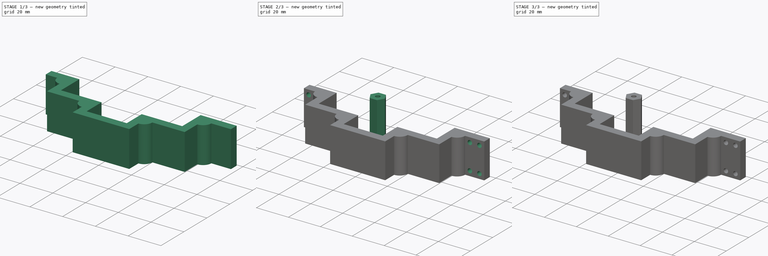
[diagram: build sequence overview — one tinted view per stage of 3, left to right]
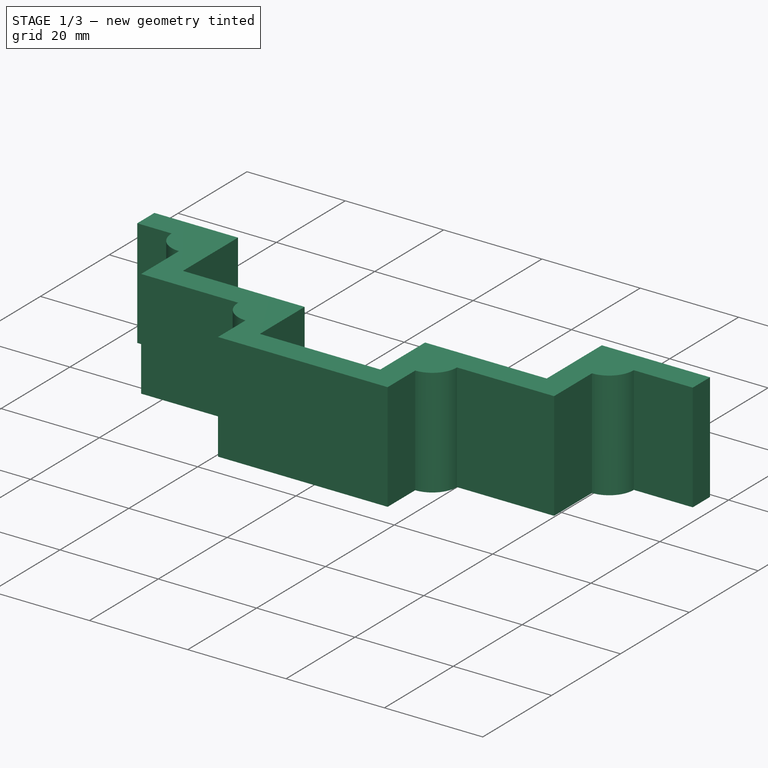
[diagram: stage 1 of 3 — iso view after this stage's code; geometry added in this stage tinted green]
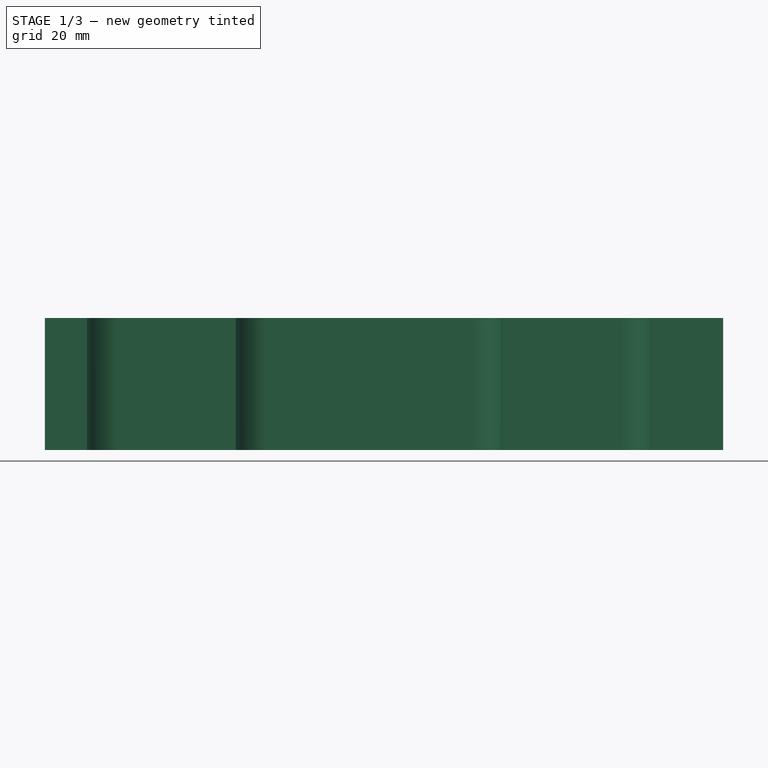
[diagram: stage 1 of 3 — front view after this stage's code; geometry added in this stage tinted green]
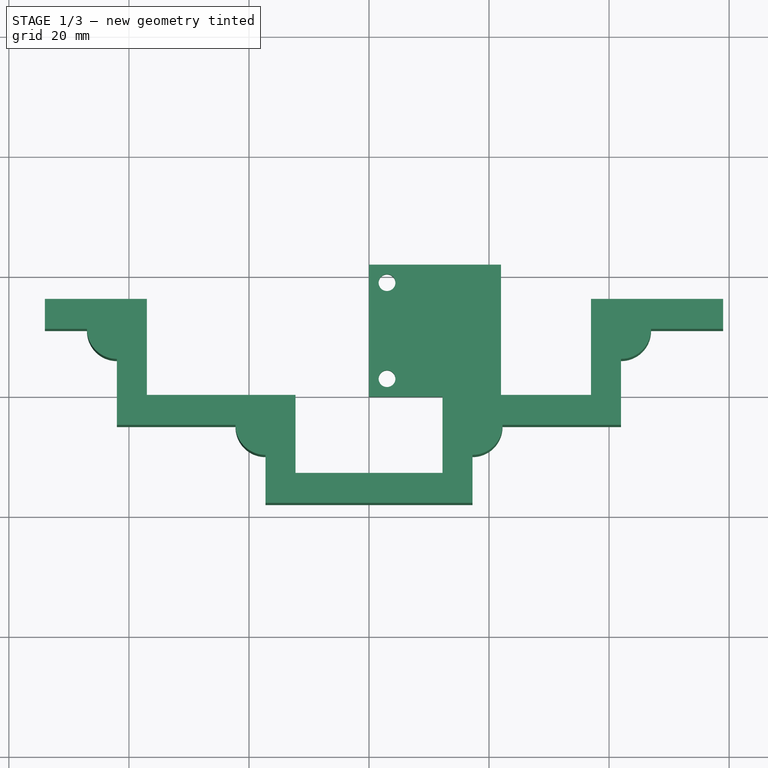
[diagram: stage 1 of 3 — top view after this stage's code; geometry added in this stage tinted green]
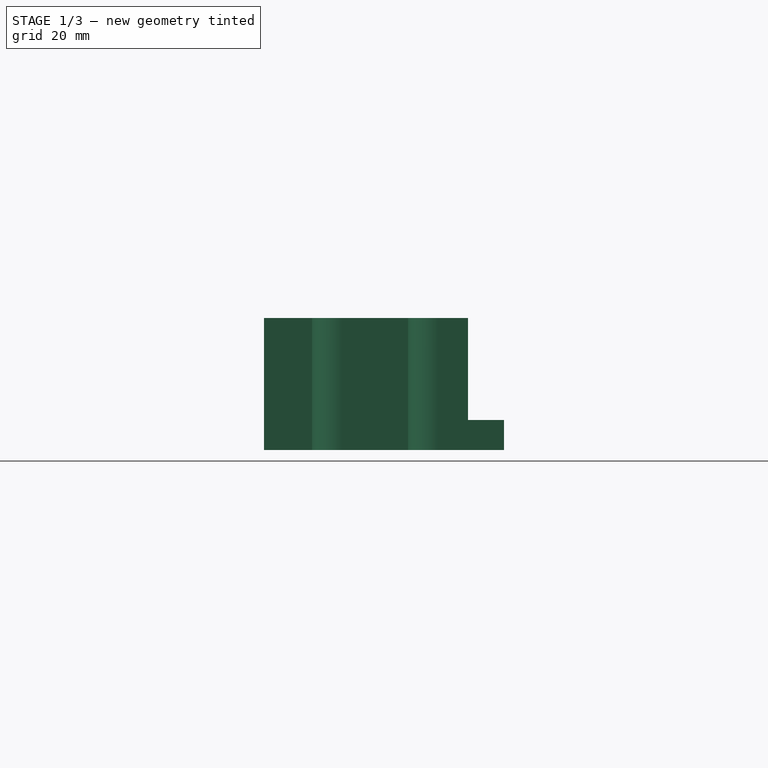
[diagram: stage 1 of 3 — right view after this stage's code; geometry added in this stage tinted green]
FCSTD DOCUMENT  (FreeCAD 0.20R29177 +426 (Git))
Label: OutputShaftConnectors
License: All rights reserved
LicenseURL: http://en.wikipedia.org/wiki/All_rights_reserved
objects: Sketcher::SketchObject×7, PartDesign::Pad×4, PartDesign::Body×3, Spreadsheet::Sheet×2, PartDesign::Pocket×2, PartDesign::Revolution×1
note: 24 computed .brp shape members not serialized (recipe doc carries the construction recipe); baked Part::Feature solids carry a one-line shape summary decoded from their .brp

FEATURE [PartDesign::Body] Body
  Group = -> [Sketch,Pad,Sketch001,Pad001,Sketch002,Pocket,Sketch003,Revolution]
  Origin = -> Origin
  Tip = -> Revolution
FEATURE [Spreadsheet::Sheet] Spreadsheet001  label="Spreadsheet001UnderCarSupport1"
  cells = A2=totalWidthInner; B2(totalWidthInner)==75 - 1; A3=underBumpWidth; B3(underBumpWidth)==25 - 0.5; A4=wallThickness; B4(wallThickness)=5; A5=bumpHeight; B5(bumpHeight)==12.5 + 0.5; A6=sideHeight; B6(sideHeight)==15 + 1; A7=halfTotalWidthInner; B7(halfTotalWidthInner)==B2 / 2; C7=totalWidthInner/2; A8=halfUnderBumpWidth; B8(halfUnderBumpWidth)==B3 / 2; A10=frontExtra; B10(frontExtra)==B4 * 2 + 12; A11=rareExtra; B11(rareExtra)==B4 * 2 + 7; A12=underArmLen; B12(underArmLen)==B7 - B8; A14=LowerBumpOutsideLen; B14(LowerBumpOutsideLen)==B8 + B4; C14=halfUnderBumpWidth + wallThickness; A15=LowerOutsideLen; B15(LowerOutsideLen)==B7 + B4; C15=lower outside + wallThickness; A17=tightScrewR; B17(tightScrewR)=1.4; A18=screwToSide; B18(screwToSide)=3; A19=unitThickness; B19(unitThickness)=22; A21=frontScrewPos; B21(frontScrewPos)==B7 + B10 - B18; A22=rearScrewPos; B22(rearScrewPos)==B7 + B11 - B18
FEATURE [Sketcher::SketchObject] Sketch004
  FullyConstrained = true
  MapMode = 5
  Support = -> [XY_Plane002]
  expr: Constraints[20] = Spreadsheet001.sideHeight
  expr: Constraints[21] = Spreadsheet001.sideHeight
  expr: Constraints[26] = Spreadsheet001.frontExtra
  expr: Constraints[27] = Spreadsheet001.rareExtra
  expr: Constraints[28] = Spreadsheet001.sideHeight + Spreadsheet001.wallThickness
  expr: Constraints[2] = Spreadsheet001.halfTotalWidthInner
  expr: Constraints[33] = Spreadsheet001.bumpHeight
  expr: Constraints[36] = Spreadsheet001.LowerBumpOutsideLen
  expr: Constraints[39] = Spreadsheet001.wallThickness
  expr: Constraints[3] = Spreadsheet001.halfTotalWidthInner
  expr: Constraints[40] = Spreadsheet001.halfUnderBumpWidth + Spreadsheet001.wallThickness
  expr: Constraints[42] = Spreadsheet001.bumpHeight + Spreadsheet001.wallThickness
  expr: Constraints[45] = Spreadsheet001.wallThickness
  expr: Constraints[48] = Spreadsheet001.LowerBumpOutsideLen
  expr: Constraints[49] = Spreadsheet001.LowerOutsideLen
  expr: Constraints[56] = Spreadsheet001.wallThickness
  expr: Constraints[57] = Spreadsheet001.LowerOutsideLen
  expr: Constraints[5] = Spreadsheet001.halfUnderBumpWidth
  expr: Constraints[64] = Spreadsheet001.wallThickness
  expr: Constraints[67] = Spreadsheet001.wallThickness
  expr: Constraints[68] = Spreadsheet001.wallThickness
  expr: Constraints[69] = Spreadsheet001.wallThickness
  expr: Constraints[6] = Spreadsheet001.halfUnderBumpWidth
  expr: Constraints[72] = Spreadsheet001.wallThickness
  expr: Constraints[73] = Spreadsheet001.wallThickness
  expr: Constraints[74] = Spreadsheet001.wallThickness
  expr: Constraints[75] = Spreadsheet001.wallThickness
  expr: Constraints[7] = Spreadsheet001.bumpHeight
  sketch-geometry (24):
    g0: LineSegment StartX=-37 StartY=0 StartZ=0 EndX=-12.25 EndY=0 EndZ=0
    g1: LineSegment StartX=-12.25 StartY=-13 StartZ=0 EndX=12.25 EndY=-13 EndZ=0
    g2: LineSegment StartX=12.25 StartY=-13 StartZ=0 EndX=12.25 EndY=0 EndZ=0
    g3: LineSegment StartX=-12.25 StartY=-13 StartZ=0 EndX=-12.25 EndY=0 EndZ=0
    g4: LineSegment StartX=12.25 StartY=0 StartZ=0 EndX=37 EndY=0 EndZ=0
    g5: LineSegment StartX=-37 StartY=0 StartZ=0 EndX=-37 EndY=16 EndZ=0
    g6: LineSegment StartX=37 StartY=0 StartZ=0 EndX=37 EndY=16 EndZ=0
    g7: LineSegment StartX=37 StartY=16 StartZ=0 EndX=59 EndY=16 EndZ=0
    g8: LineSegment StartX=-37 StartY=16 StartZ=0 EndX=-54 EndY=16 EndZ=0
    g9: LineSegment StartX=-42 StartY=-5 StartZ=0 EndX=-22.25 EndY=-5 EndZ=0
    g10: LineSegment StartX=42 StartY=-5 StartZ=0 EndX=22.25 EndY=-5 EndZ=0
    g11: LineSegment StartX=-17.25 StartY=-10 StartZ=0 EndX=-17.25 EndY=-18 EndZ=0
    g12: LineSegment StartX=17.25 StartY=-10 StartZ=0 EndX=17.25 EndY=-18 EndZ=0
    g13: LineSegment StartX=-17.25 StartY=-18 StartZ=0 EndX=17.25 EndY=-18 EndZ=0
    g14: ArcOfCircle CenterX=17.25 CenterY=-5 CenterZ=0 NormalX=0 NormalY=0 NormalZ=1 AngleXU=0 Radius=5 StartAngle=4.71239 EndAngle=6.28319
    g15: ArcOfCircle CenterX=-17.25 CenterY=-5 CenterZ=0 NormalX=0 NormalY=0 NormalZ=1 AngleXU=0 Radius=5 StartAngle=3.14159 EndAngle=4.71239
    g16: LineSegment StartX=-42 StartY=-5 StartZ=0 EndX=-42 EndY=6 EndZ=0
    g17: LineSegment StartX=-47 StartY=11 StartZ=0 EndX=-54 EndY=11 EndZ=0
    g18: LineSegment StartX=-54 StartY=16 StartZ=0 EndX=-54 EndY=11 EndZ=0
    g19: LineSegment StartX=42 StartY=-5 StartZ=0 EndX=42 EndY=6 EndZ=0
    g20: LineSegment StartX=47 StartY=11 StartZ=0 EndX=59 EndY=11 EndZ=0
    g21: LineSegment StartX=59 StartY=16 StartZ=0 EndX=59 EndY=11 EndZ=0
    g22: ArcOfCircle CenterX=42 CenterY=11 CenterZ=0 NormalX=0 NormalY=0 NormalZ=1 AngleXU=0 Radius=5 StartAngle=4.71239 EndAngle=6.28319
    g23: ArcOfCircle CenterX=-42 CenterY=11 CenterZ=0 NormalX=0 NormalY=0 NormalZ=1 AngleXU=0 Radius=5 StartAngle=3.14159 EndAngle=4.71239
  constraints (76):
    c: PointOnObject(g0,g-1)
    c: PointOnObject(g4,g-1)
    c: DistanceX(g-1,g4) = 37
    c: DistanceX(g0,g-1) = 37
    c: Horizontal(g1)
    c: DistanceX(g-1,g1) = 12.25
    c: DistanceX(g1,g-1) = 12.25
    c: DistanceY(g1,g-1) = 13
    c: Coincident(g2,g1)
    c: Vertical(g2)
    c: Coincident(g3,g1)
    c: Vertical(g3)
    c: Coincident(g0,g3)
    c: Coincident(g4,g2)
    c: Horizontal(g4)
    c: Horizontal(g0)
    c: Coincident(g5,g0)
    c: Vertical(g5)
    c: Coincident(g6,g4)
    c: Vertical(g6)
    c: DistanceY(g6,g6) = 16
    c: DistanceY(g5,g5) = 16
    c: Coincident(g7,g6)
    c: Horizontal(g7)
    c: Coincident(g8,g5)
    c: Horizontal(g8)
    c: DistanceX(g7,g7) = 22
    c: DistanceX(g8,g8) = 17
    c: DistanceY(g9,g8) = 21
    c: Horizontal(g9)
    c: Horizontal(g10)
    c: Vertical(g11)
    c: Vertical(g12)
    c: DistanceY(g11,g15) = 13
    c: Coincident(g13,g11)
    c: Coincident(g13,g12)
    c: DistanceX(g-1,g12) = 17.25
    c: Coincident(g9,g15)
    c: Coincident(g11,g15)
    c: Radius(g15) = 5
    c: DistanceX(g11,g-1) = 17.25
    c: Horizontal(g13)
    c: DistanceY(g11,g-1) = 18
    c: Coincident(g12,g14)
    c: Coincident(g10,g14)
    c: Radius(g14) = 5
    c: PointOnObject(g14,g10)
    c: PointOnObject(g14,g12)
    c: DistanceX(g15,g-1) = 17.25
    c: DistanceX(g9,g-1) = 42
    c: Coincident(g16,g9)
    c: Vertical(g16)
    c: Horizontal(g17)
    c: Coincident(g18,g8)
    c: Vertical(g18)
    c: Coincident(g18,g17)
    c: DistanceY(g14,g2) = 5
    c: DistanceX(g-1,g10) = 42
    c: Coincident(g19,g10)
    c: Vertical(g19)
    c: Horizontal(g20)
    c: Coincident(g21,g7)
    c: Vertical(g21)
    c: Coincident(g20,g21)
    c: Radius(g22) = 5
    c: Coincident(g20,g22)
    c: Coincident(g19,g22)
    c: DistanceY(g22,g6) = 5
    c: DistanceX(g6,g22) = 5
    c: DistanceY(g20,g6) = 5
    c: Coincident(g17,g23)
    c: Coincident(g16,g23)
    c: DistanceY(g23,g5) = 5
    c: DistanceX(g23,g5) = 5
    c: Radius(g23) = 5
    c: DistanceY(g17,g5) = 5
FEATURE [PartDesign::Pad] Pad002
  Direction = (0,0,1)
  Length = 22
  Length2 = 10
  Profile = -> Sketch004
  ReferenceAxis = -> Sketch004 [N_Axis]
  Type = 0
  expr: Length = Spreadsheet001.unitThickness
FEATURE [PartDesign::Body] Body002
  Group = -> [Sketch004,Pad002,Sketch005,Pocket001]
  Origin = -> Origin002
  Tip = -> Pocket001
FEATURE [Sketcher::SketchObject] Sketch006
  FullyConstrained = true
  MapMode = 5
  Support = -> [XY_Plane001]
  expr: Constraints[10] = Spreadsheet001.unitThickness
  expr: Constraints[12] = Spreadsheet001.screwToSide
  expr: Constraints[13] = Spreadsheet001.screwToSide
  expr: Constraints[14] = Spreadsheet001.screwToSide
  expr: Constraints[18] = Spreadsheet001.tightScrewR
  expr: Constraints[9] = Spreadsheet001.unitThickness
  sketch-geometry (7):
    g0: LineSegment StartX=0 StartY=0 StartZ=0 EndX=22 EndY=0 EndZ=0
    g1: LineSegment StartX=22 StartY=0 StartZ=0 EndX=22 EndY=22 EndZ=0
    g2: LineSegment StartX=22 StartY=22 StartZ=0 EndX=0 EndY=22 EndZ=0
    g3: LineSegment StartX=0 StartY=22 StartZ=0 EndX=0 EndY=0 EndZ=0
    g4: LineSegment StartX=3 StartY=19 StartZ=0 EndX=3 EndY=3 EndZ=0
    g5: Circle CenterX=3 CenterY=19 CenterZ=0 NormalX=0 NormalY=0 NormalZ=1 AngleXU=0 Radius=1.4
    g6: Circle CenterX=3 CenterY=3 CenterZ=0 NormalX=0 NormalY=0 NormalZ=1 AngleXU=0 Radius=1.4
  constraints (19):
    c: Coincident(g0,g1)
    c: Coincident(g1,g2)
    c: Coincident(g2,g3)
    c: Coincident(g3,g0)
    c: Horizontal(g0)
    c: Horizontal(g2)
    c: Vertical(g1)
    c: Vertical(g3)
    c: Coincident(g0,g-1)
    c: DistanceX(g2,g2) = 22
    c: DistanceY(g1,g1) = 22
    c: Vertical(g4)
    c: DistanceY(g0,g4) = 3
    c: DistanceY(g4,g2) = 3
    c: DistanceX(g0,g4) = 3
    c: Coincident(g5,g4)
    c: Coincident(g6,g4)
    c: Equal(g5,g6)
    c: Radius(g5) = 1.4
FEATURE [PartDesign::Pad] Pad003
  Direction = (0,0,1)
  Length = 5
  Length2 = 10
  Profile = -> Sketch006
  ReferenceAxis = -> Sketch006 [N_Axis]
  Type = 0
  expr: Length = Spreadsheet001.wallThickness
FEATURE [PartDesign::Body] Body001  label="Body001RearSecure"
  Group = -> [Sketch006,Pad003]
  Origin = -> Origin001
  Tip = -> Pad003
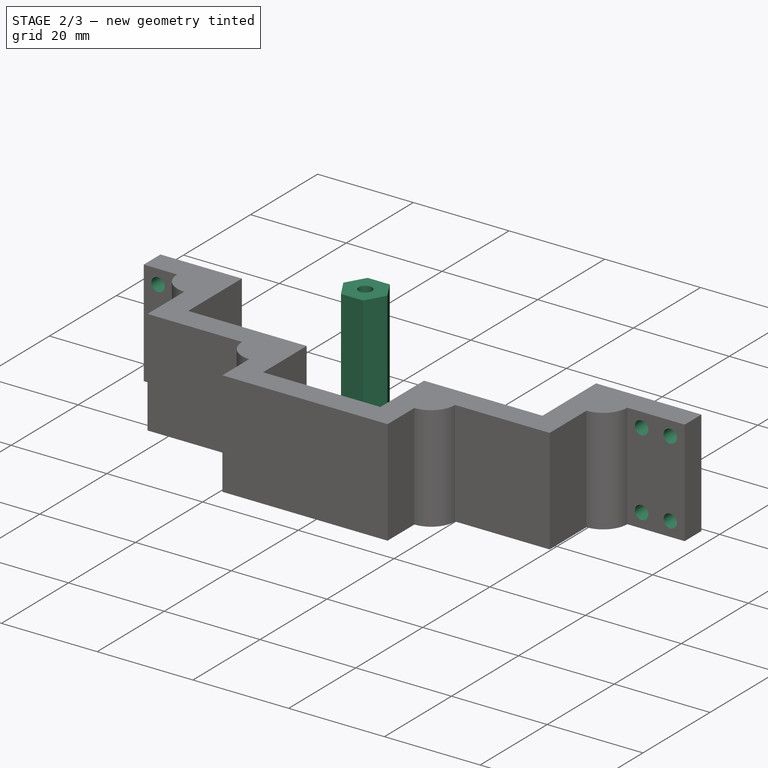
[diagram: stage 2 of 3 — iso view after this stage's code; geometry added in this stage tinted green]
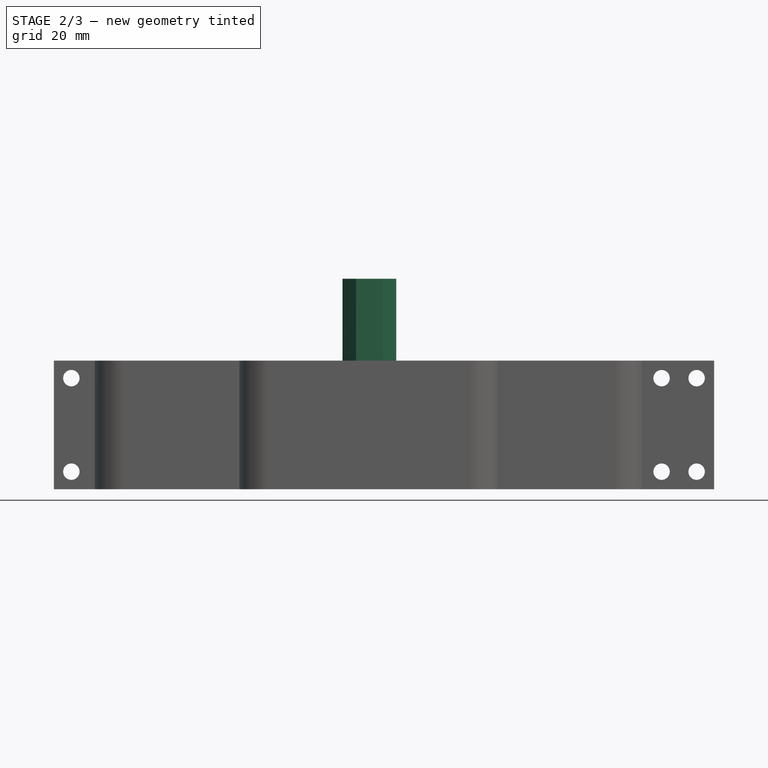
[diagram: stage 2 of 3 — front view after this stage's code; geometry added in this stage tinted green]
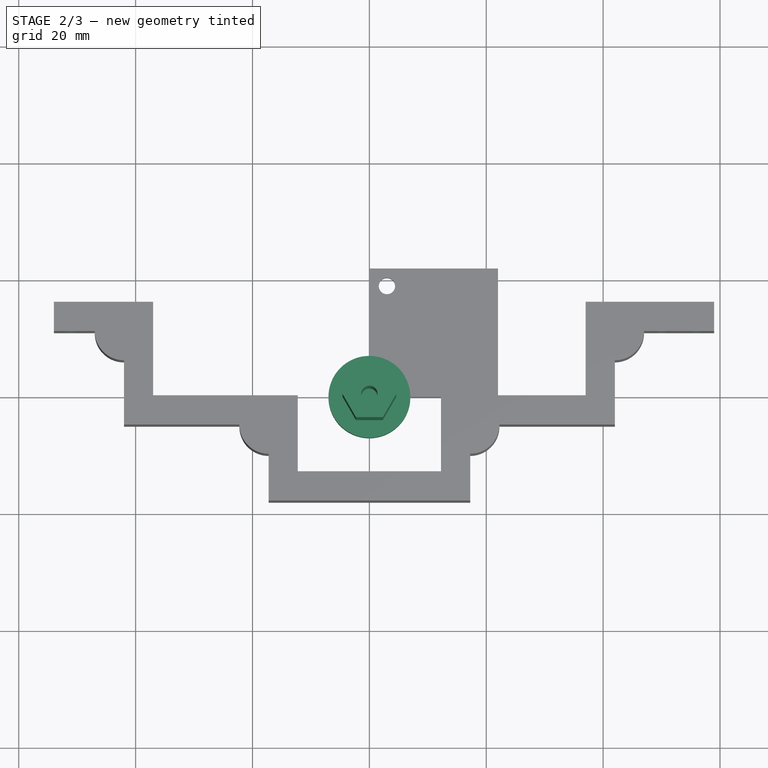
[diagram: stage 2 of 3 — top view after this stage's code; geometry added in this stage tinted green]
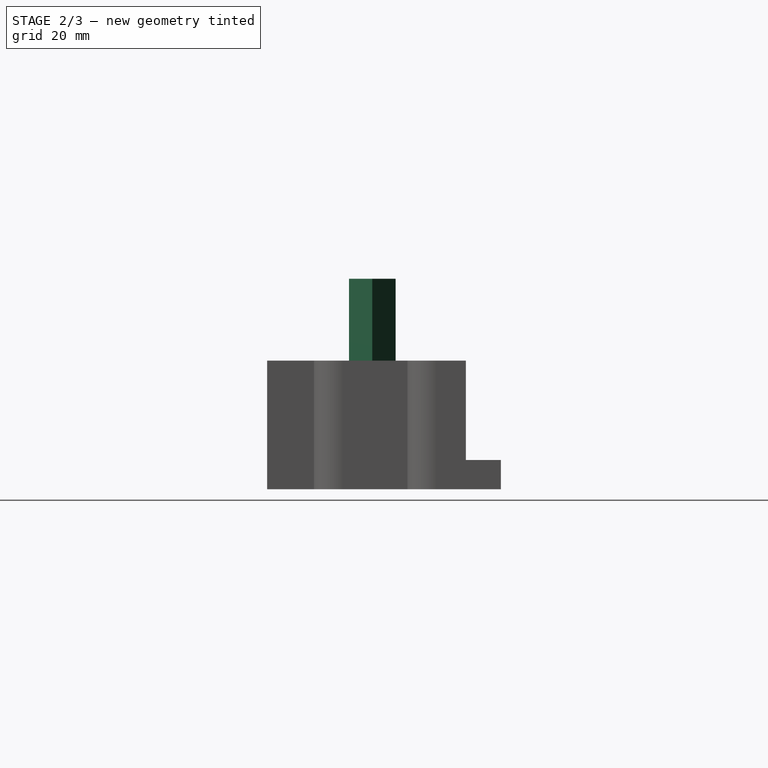
[diagram: stage 2 of 3 — right view after this stage's code; geometry added in this stage tinted green]
FEATURE [Spreadsheet::Sheet] Spreadsheet
  cells = A2=femalHexSocketR; B2(femalHexSocketR)=4.965; A3=hexToHexOuterR; B3(hexToHexOuterR)=7; A4=baseHeight; B4(baseHeight)=7; A5=rancherHexSocketR; B5(rancherHexSocketR)=4.6; C5=4.5 a bit loss, 4.8 too big, 4.6 is good tight; A6=totalHeight; B6(totalHeight)==B4 + 9 + 20; A7=screwTight; B7(screwTight)=1.4
FEATURE [Sketcher::SketchObject] Sketch  label="SketchBase"
  FullyConstrained = true
  MapMode = 5
  Support = -> [XY_Plane]
  expr: Constraints[1] = Spreadsheet.hexToHexOuterR
  sketch-geometry (1):
    g0: Circle CenterX=0 CenterY=0 CenterZ=0 NormalX=0 NormalY=0 NormalZ=1 AngleXU=0 Radius=7
  constraints (2):
    c: Coincident(g0,g-1)
    c: Radius(g0) = 7
FEATURE [PartDesign::Pad] Pad
  Direction = (0,0,1)
  Length = 7
  Length2 = 10
  Profile = -> Sketch
  ReferenceAxis = -> Sketch [N_Axis]
  Type = 0
  expr: Length = Spreadsheet.baseHeight
FEATURE [Sketcher::SketchObject] Sketch001
  FullyConstrained = true
  MapMode = 5
  Support = -> [XY_Plane]
  expr: Constraints[19] = Spreadsheet.rancherHexSocketR
  expr: Constraints[21] = Spreadsheet.screwTight
  sketch-geometry (8):
    g0: LineSegment StartX=4.6 StartY=0 StartZ=0 EndX=2.3 EndY=3.98372 EndZ=0
    g1: LineSegment StartX=2.3 StartY=3.98372 StartZ=0 EndX=-2.3 EndY=3.98372 EndZ=0
    g2: LineSegment StartX=-2.3 StartY=3.98372 StartZ=0 EndX=-4.6 EndY=3.921e-13 EndZ=0
    g3: LineSegment StartX=-4.6 StartY=3.921e-13 StartZ=0 EndX=-2.3 EndY=-3.98372 EndZ=0
    g4: LineSegment StartX=-2.3 StartY=-3.98372 StartZ=0 EndX=2.3 EndY=-3.98372 EndZ=0
    g5: LineSegment StartX=2.3 StartY=-3.98372 StartZ=0 EndX=4.6 EndY=0 EndZ=0
    g6: Circle CenterX=0 CenterY=0 CenterZ=0 NormalX=0 NormalY=0 NormalZ=1 AngleXU=0 Radius=4.6
    g7: Circle CenterX=0 CenterY=0 CenterZ=0 NormalX=0 NormalY=0 NormalZ=1 AngleXU=0 Radius=1.4
  constraints (18):
    c: Coincident(g0,g1)
    c: Coincident(g1,g2)
    c: Coincident(g2,g3)
    c: Coincident(g3,g4)
    c: Coincident(g4,g5)
    c: Coincident(g5,g0)
    c: Equal(g0, g1-g5) x5
    c: PointOnObject(g0,g6)
    c: PointOnObject(g1,g6)
    c: PointOnObject(g2,g6)
    c: PointOnObject(g3,g6)
    c: PointOnObject(g4,g6)
    c: PointOnObject(g5,g6)
    c: Coincident(g6,g-1)
    c: PointOnObject(g5,g-1)
    c: Radius(g6) = 4.6
    c: Coincident(g7,g6)
    c: Radius(g7) = 1.4
FEATURE [PartDesign::Pad] Pad001
  BaseFeature = -> Pad
  Direction = (0,0,1)
  Length = 36
  Length2 = 10
  Profile = -> Sketch001
  ReferenceAxis = -> Sketch001 [N_Axis]
  Type = 0
  expr: Length = Spreadsheet.totalHeight
FEATURE [Sketcher::SketchObject] Sketch005
  FullyConstrained = true
  MapMode = 5
  Placement = pos=(0,0,0) rot=(1,0,0;1.5708rad)
  Support = -> [XZ_Plane002]
  expr: Constraints[19] = Spreadsheet001.tightScrewR
  expr: Constraints[23] = Spreadsheet001.halfTotalWidthInner + Spreadsheet001.wallThickness * 2 + Spreadsheet001.screwToSide
  expr: Constraints[2] = Spreadsheet001.rearScrewPos
  expr: Constraints[3] = Spreadsheet001.frontScrewPos
  expr: Constraints[4] = Spreadsheet001.screwToSide
  expr: Constraints[8] = Spreadsheet001.unitThickness - Spreadsheet001.screwToSide
  sketch-geometry (11):
    g0: LineSegment StartX=-51 StartY=19 StartZ=0 EndX=-51 EndY=3 EndZ=0
    g1: LineSegment StartX=56 StartY=19 StartZ=0 EndX=56 EndY=3 EndZ=0
    g2: LineSegment StartX=-51 StartY=3 StartZ=0 EndX=56 EndY=3 EndZ=0
    g3: LineSegment StartX=-51 StartY=19 StartZ=0 EndX=56 EndY=19 EndZ=0
    g4: Circle CenterX=-51 CenterY=19 CenterZ=0 NormalX=0 NormalY=0 NormalZ=1 AngleXU=0 Radius=1.4
    g5: Circle CenterX=-51 CenterY=3 CenterZ=0 NormalX=0 NormalY=0 NormalZ=1 AngleXU=0 Radius=1.4
    g6: Circle CenterX=56 CenterY=19 CenterZ=0 NormalX=0 NormalY=0 NormalZ=1 AngleXU=0 Radius=1.4
    g7: Circle CenterX=56 CenterY=3 CenterZ=0 NormalX=0 NormalY=0 NormalZ=1 AngleXU=0 Radius=1.4
    g8: LineSegment StartX=50 StartY=19 StartZ=0 EndX=50 EndY=3 EndZ=0
    g9: Circle CenterX=50 CenterY=19 CenterZ=0 NormalX=0 NormalY=0 NormalZ=1 AngleXU=0 Radius=1.4
    g10: Circle CenterX=50 CenterY=3 CenterZ=0 NormalX=0 NormalY=0 NormalZ=1 AngleXU=0 Radius=1.4
  constraints (28):
    c: Vertical(g0)
    c: Vertical(g1)
    c: DistanceX(g0,g-1) = 51
    c: DistanceX(g-1,g1) = 56
    c: DistanceY(g-1,g0) = 3
    c: Coincident(g2,g0)
    c: Coincident(g2,g1)
    c: Horizontal(g2)
    c: DistanceY(g-1,g0) = 19
    c: Coincident(g3,g0)
    c: Coincident(g3,g1)
    c: Horizontal(g3)
    c: Coincident(g4,g0)
    c: Coincident(g5,g0)
    c: Coincident(g6,g1)
    c: Coincident(g7,g1)
    c: Equal(g6,g4)
    c: Equal(g5,g4)
    c: Equal(g5,g7)
    c: Radius(g4) = 1.4
    c: PointOnObject(g8,g3)
    c: PointOnObject(g8,g2)
    c: Vertical(g8)
    c: DistanceX(g-1,g8) = 50
    c: Coincident(g9,g8)
    c: Coincident(g10,g8)
    c: Equal(g9,g10)
    c: Equal(g10,g6)
FEATURE [PartDesign::Pocket] Pocket001
  BaseFeature = -> Pad002
  Direction = (0,1,2e-16)
  Length = 5
  Length2 = 5
  Profile = -> Sketch005
  ReferenceAxis = -> Sketch005 [N_Axis]
  Type = 1
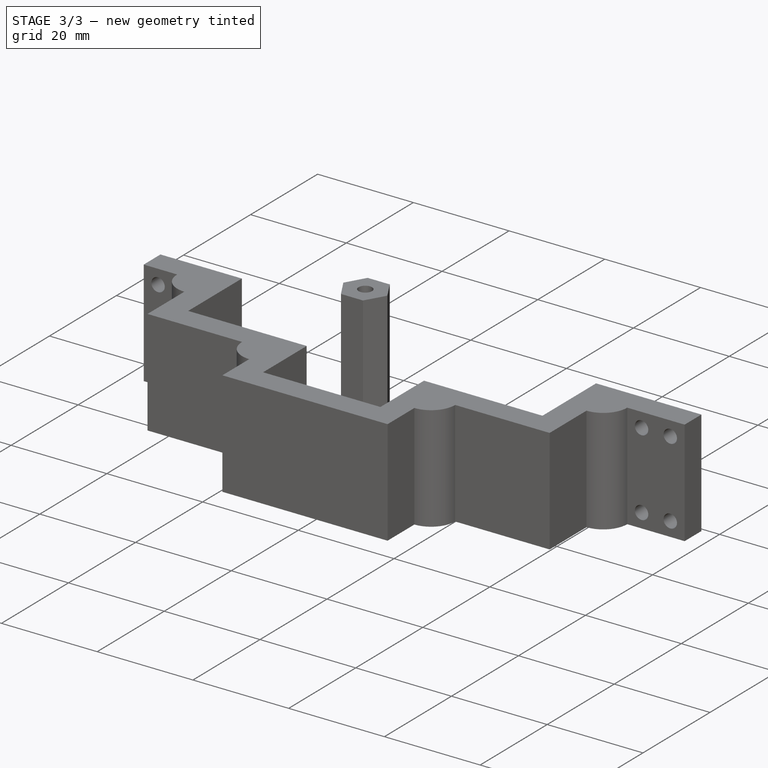
[diagram: stage 3 of 3 — iso view after this stage's code; geometry added in this stage tinted green]
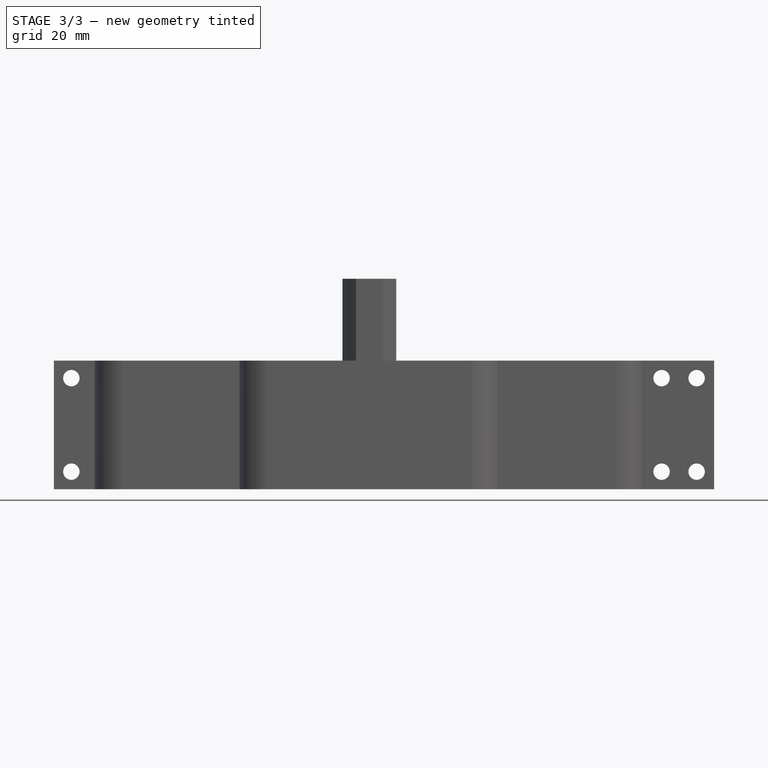
[diagram: stage 3 of 3 — front view after this stage's code; geometry added in this stage tinted green]
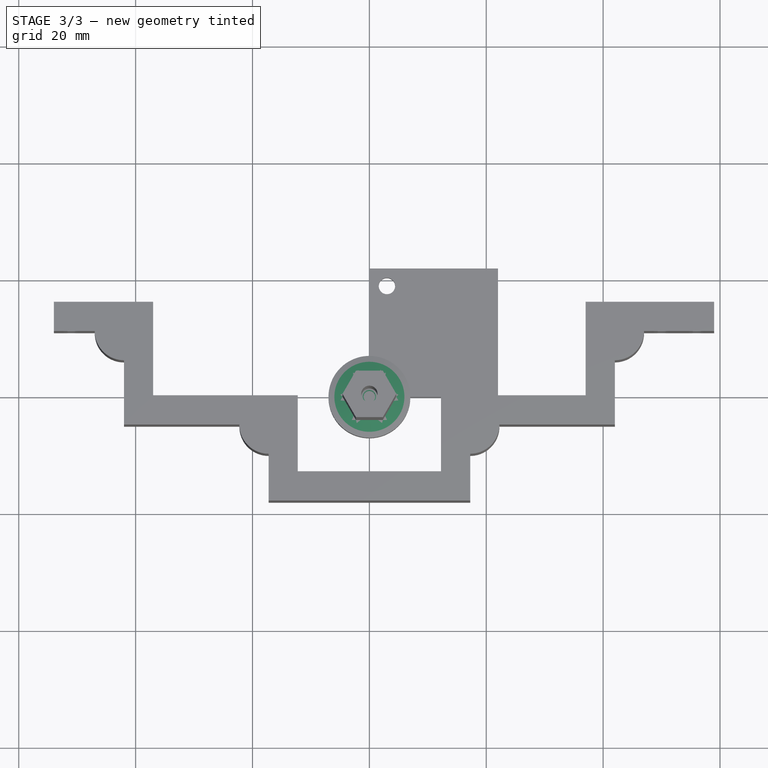
[diagram: stage 3 of 3 — top view after this stage's code; geometry added in this stage tinted green]
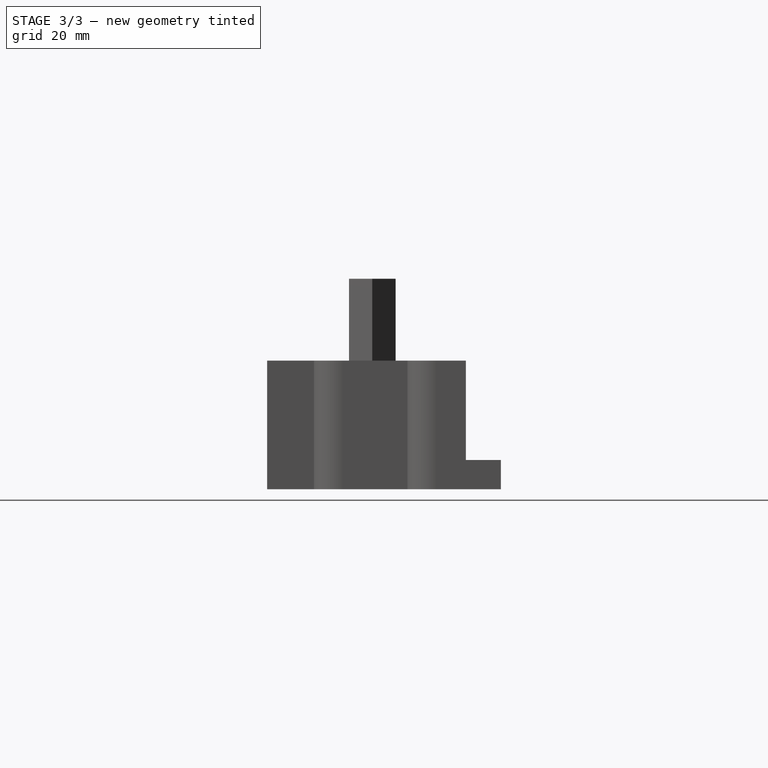
[diagram: stage 3 of 3 — right view after this stage's code; geometry added in this stage tinted green]
FEATURE [Sketcher::SketchObject] Sketch002  label="Sketch002BaseHex"
  FullyConstrained = true
  MapMode = 5
  Support = -> [XY_Plane]
  expr: Constraints[19] = Spreadsheet.femalHexSocketR
  sketch-geometry (7):
    g0: LineSegment StartX=4.965 StartY=0 StartZ=0 EndX=2.4825 EndY=4.29982 EndZ=0
    g1: LineSegment StartX=2.4825 StartY=4.29982 StartZ=0 EndX=-2.4825 EndY=4.29982 EndZ=0
    g2: LineSegment StartX=-2.4825 StartY=4.29982 StartZ=0 EndX=-4.965 EndY=3.2809e-12 EndZ=0
    g3: LineSegment StartX=-4.965 StartY=3.2809e-12 StartZ=0 EndX=-2.4825 EndY=-4.29982 EndZ=0
    g4: LineSegment StartX=-2.4825 StartY=-4.29982 StartZ=0 EndX=2.4825 EndY=-4.29982 EndZ=0
    g5: LineSegment StartX=2.4825 StartY=-4.29982 StartZ=0 EndX=4.965 EndY=0 EndZ=0
    g6: Circle CenterX=1e-16 CenterY=0 CenterZ=0 NormalX=0 NormalY=0 NormalZ=1 AngleXU=0 Radius=4.965
  constraints (16):
    c: Coincident(g0,g1)
    c: Coincident(g1,g2)
    c: Coincident(g2,g3)
    c: Coincident(g3,g4)
    c: Coincident(g4,g5)
    c: Coincident(g5,g0)
    c: Equal(g0, g1-g5) x5
    c: PointOnObject(g0,g6)
    c: PointOnObject(g1,g6)
    c: PointOnObject(g2,g6)
    c: PointOnObject(g3,g6)
    c: PointOnObject(g4,g6)
    c: PointOnObject(g5,g6)
    c: Coincident(g6,g-1)
    c: PointOnObject(g5,g-1)
    c: Radius(g6) = 4.965
FEATURE [PartDesign::Pocket] Pocket
  BaseFeature = -> Pad001
  Direction = (0,0,-1)
  Length = 5
  Length2 = 5
  Profile = -> Sketch002
  ReferenceAxis = -> Sketch002 [N_Axis]
  Reversed = true
  Type = 0
FEATURE [Sketcher::SketchObject] Sketch003  label="Sketch003Revolver"
  FullyConstrained = true
  MapMode = 5
  Placement = pos=(0,0,0) rot=(0.57735,0.57735,0.57735;2.0944rad)
  Support = -> [YZ_Plane]
  expr: Constraints[5] = Spreadsheet.baseHeight
  expr: Constraints[7] = Spreadsheet.hexToHexOuterR
  sketch-geometry (3):
    g0: LineSegment StartX=1 StartY=8.5 StartZ=0 EndX=1 EndY=7 EndZ=0
    g1: LineSegment StartX=1 StartY=7 StartZ=0 EndX=7 EndY=7 EndZ=0
    g2: LineSegment StartX=7 StartY=7 StartZ=0 EndX=1 EndY=8.5 EndZ=0
  constraints (9):
    c: Vertical(g0)
    c: Coincident(g1,g0)
    c: Horizontal(g1)
    c: Coincident(g2,g1)
    c: Coincident(g2,g0)
    c: DistanceY(g-1,g1) = 7
    c: DistanceX(g-1,g0) = 1
    c: DistanceX(g-1,g1) = 7
    c: DistanceY(g0,g0) = 1.5
FEATURE [PartDesign::Revolution] Revolution
  Angle = 360
  Axis = (-2e-16,3e-16,1)
  Base = (0,0,0)
  BaseFeature = -> Pocket
  Profile = -> Sketch003
  ReferenceAxis = -> Sketch003 [V_Axis]
  Reversed = true
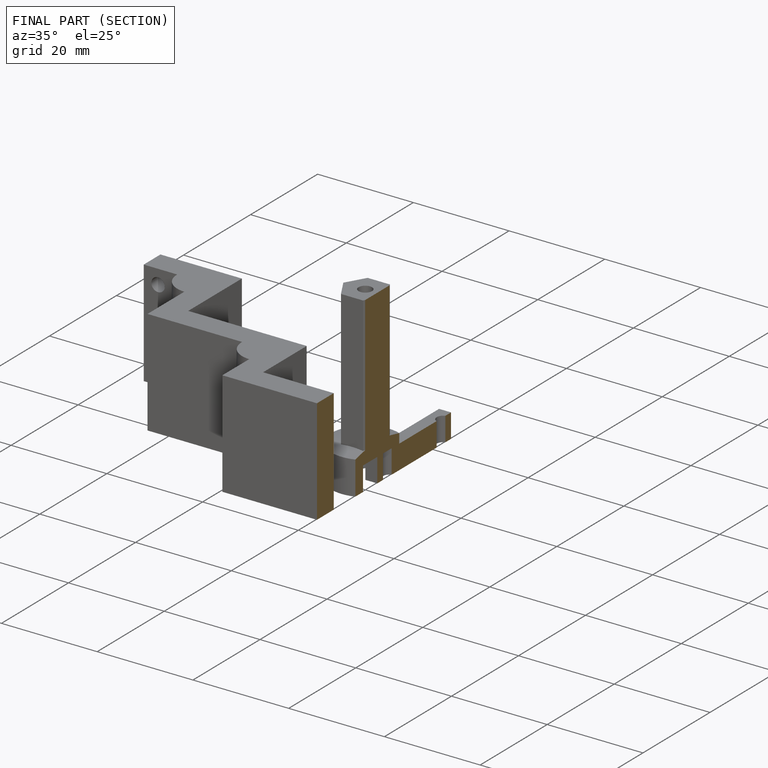
[diagram: finished part — half-section view (interior)]
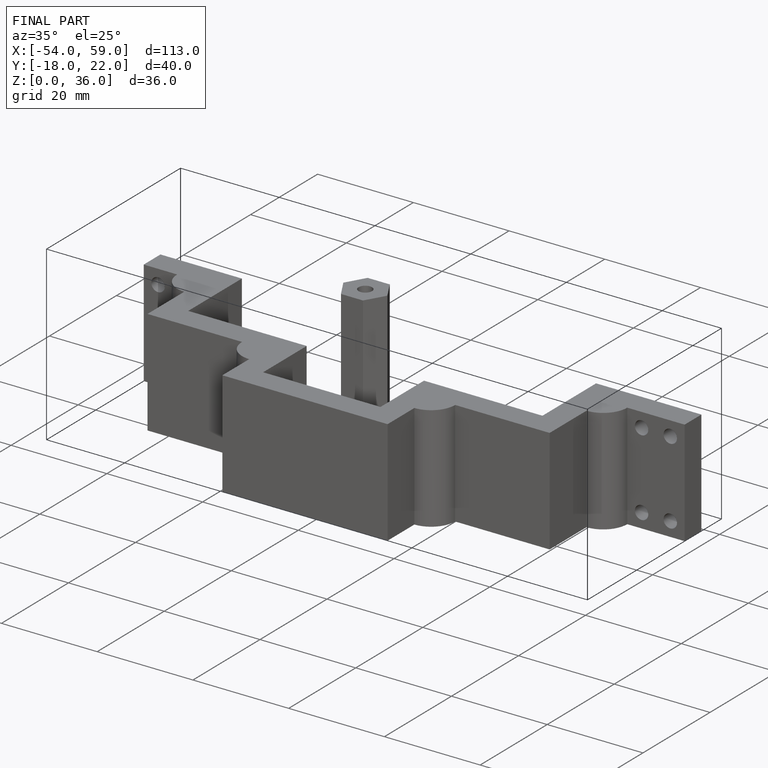
[diagram: finished part — iso view with bounding-box wireframe]
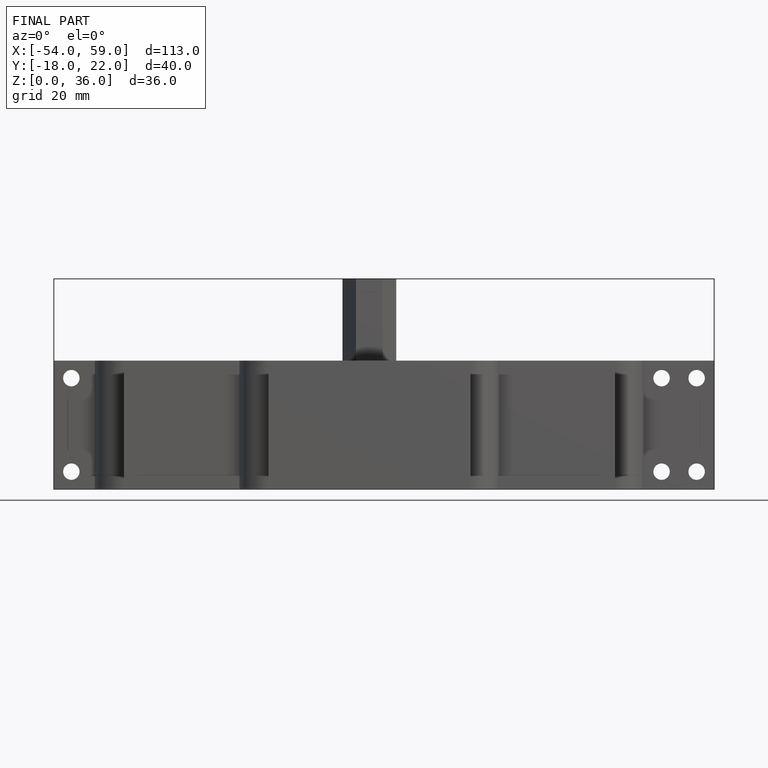
[diagram: finished part — front view with bounding-box wireframe]
